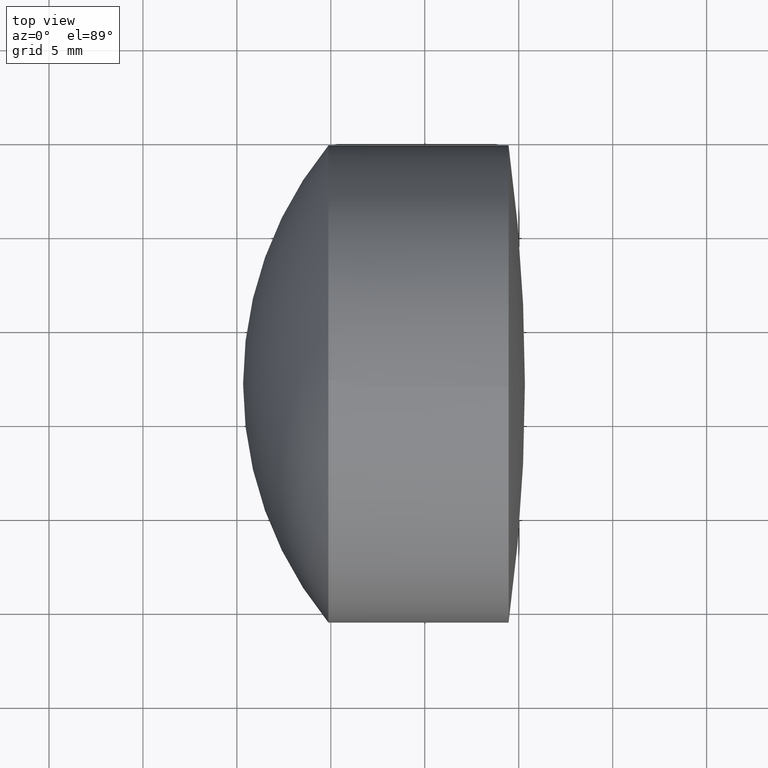
[diagram: clean part render]
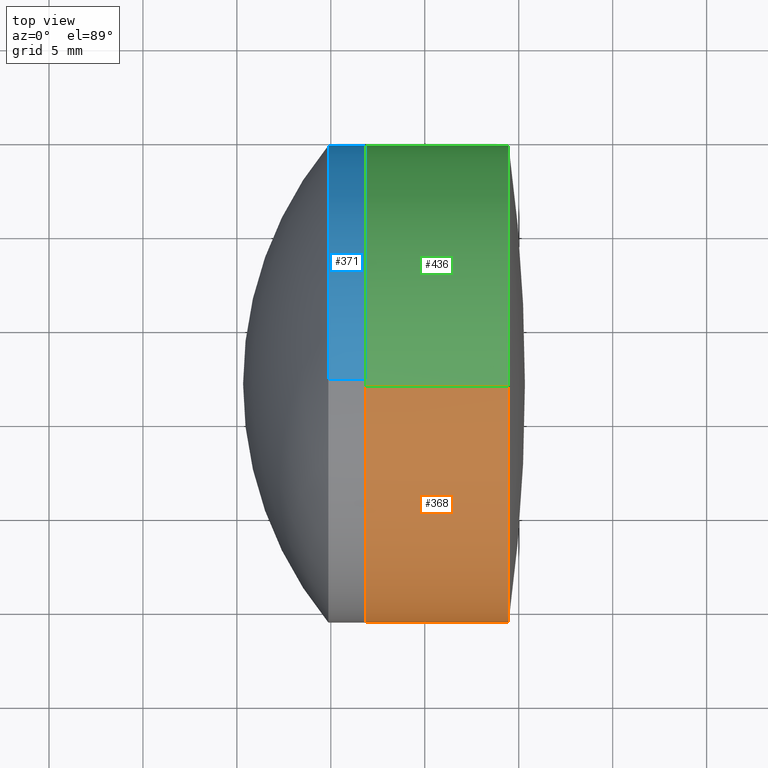
[diagram: same view with three faces highlighted in distinct colors, each labeled with its STEP entity id]
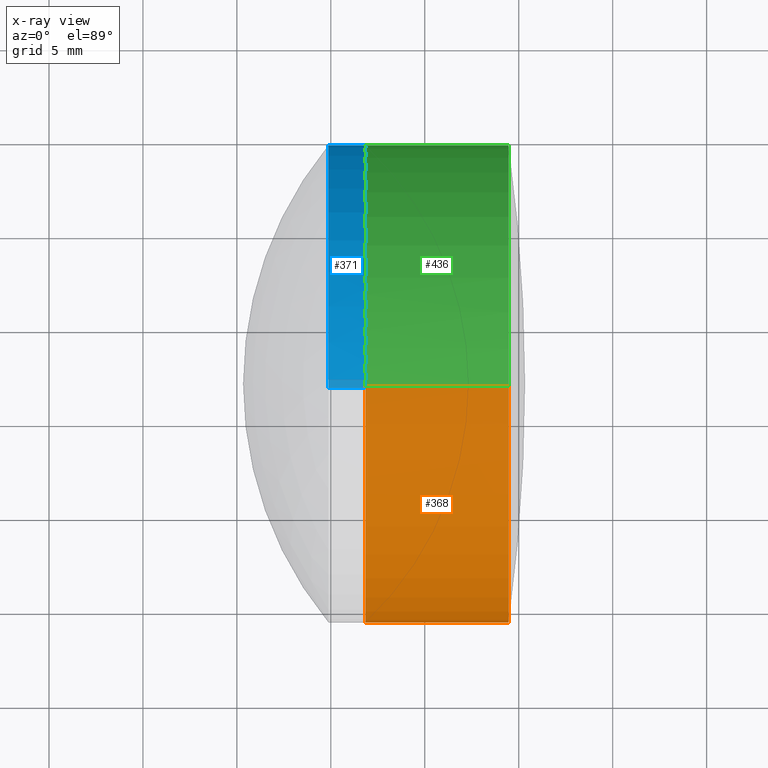
[diagram: x-ray of the same camera — body ghosted, the three highlighted faces saturated]
A machine part, top view with three faces highlighted in distinct colors.
The next image is the same camera in x-ray (body ghosted, the three faces saturated) — at least one of them is partly hidden behind the body in this view.
Their STEP definitions:

[orange] entity #368 — the highlighted cylindrical surface (partial cylindrical patch) has radius 12.7 mm, axis along (-1, -0, -0).
#5 = ORIENTED_EDGE ( 'NONE', *, *, #343, .T. ) ;
#11 = LINE ( 'NONE', #112, #242 ) ;
#33 = DIRECTION ( 'NONE',  ( 0.000000000000000000, -0.02683621914088238705, 0.9996398438148724752 ) ) ;
#35 = CARTESIAN_POINT ( 'NONE',  ( -25.54043365315157033, 32.03284803661707514, 9.296114308592563594E-16 ) ) ;
#50 = VERTEX_POINT ( 'NONE', #435 ) ;
#82 = CARTESIAN_POINT ( 'NONE',  ( -27.66995810697359204, 32.03284803661707514, 8.187873489779038115E-16 ) ) ;
#92 = CARTESIAN_POINT ( 'NONE',  ( -33.15740189501624968, 19.33742202016819434, -0.3408199830892049143 ) ) ;
#106 = ORIENTED_EDGE ( 'NONE', *, *, #157, .F. ) ;
#107 = DIRECTION ( 'NONE',  ( -1.000000000000000000, -3.326383087162362862E-17, -5.204170427930421283E-17 ) ) ;
#109 = DIRECTION ( 'NONE',  ( -1.000000000000000000, -3.326383087162362862E-17, -5.204170427930421283E-17 ) ) ;
#112 = CARTESIAN_POINT ( 'NONE',  ( -27.66995810697359204, 31.69202805352786712, 12.69542601644888080 ) ) ;
#119 = CARTESIAN_POINT ( 'NONE',  ( -25.54043365315157033, 32.37366801970627961, -12.69542601644887370 ) ) ;
#122 = CARTESIAN_POINT ( 'NONE',  ( -33.15740189501624968, 32.03284803661707514, 5.332114221112828537E-16 ) ) ;
#133 = EDGE_CURVE ( 'NONE', #338, #50, #367, .T. ) ;
#143 = CIRCLE ( 'NONE', #213, 12.70000000000000284 ) ;
#146 = ORIENTED_EDGE ( 'NONE', *, *, #133, .T. ) ;
#157 = EDGE_CURVE ( 'NONE', #301, #416, #247, .T. ) ;
#163 = VERTEX_POINT ( 'NONE', #339 ) ;
#191 = ORIENTED_EDGE ( 'NONE', *, *, #277, .F. ) ;
#204 = DIRECTION ( 'NONE',  ( -1.000000000000000000, -3.326383087162362862E-17, -5.204170427930421283E-17 ) ) ;
#207 = CARTESIAN_POINT ( 'NONE',  ( -25.54043365315156677, 19.33742202016823342, -0.3408199830892033044 ) ) ;
#213 = AXIS2_PLACEMENT_3D ( 'NONE', #122, #387, #286 ) ;
#236 = AXIS2_PLACEMENT_3D ( 'NONE', #379, #282, #311 ) ;
#239 = CARTESIAN_POINT ( 'NONE',  ( -27.66995810697359204, 32.37366801970627961, -12.69542601644888080 ) ) ;
#242 = VECTOR ( 'NONE', #107, 1000.000000000000000 ) ;
#247 = CIRCLE ( 'NONE', #428, 12.70000000000000284 ) ;
#268 = CARTESIAN_POINT ( 'NONE',  ( -33.15740189501624968, 32.03284803661707514, 5.332114221112828537E-16 ) ) ;
#271 = ORIENTED_EDGE ( 'NONE', *, *, #423, .F. ) ;
#277 = EDGE_CURVE ( 'NONE', #431, #301, #302, .T. ) ;
#282 = DIRECTION ( 'NONE',  ( -1.000000000000000000, -3.326383087162362862E-17, -5.204170427930421283E-17 ) ) ;
#286 = DIRECTION ( 'NONE',  ( 0.000000000000000000, -0.02683621914088238705, 0.9996398438148724752 ) ) ;
#289 = EDGE_LOOP ( 'NONE', ( #191, #5, #146, #391, #271, #106 ) ) ;
#301 = VERTEX_POINT ( 'NONE', #319 ) ;
#302 = LINE ( 'NONE', #239, #337 ) ;
#304 = DIRECTION ( 'NONE',  ( 0.000000000000000000, -0.02683621914088239746, 0.9996398438148724752 ) ) ;
#309 = DIRECTION ( 'NONE',  ( -1.000000000000000000, -3.326383087162362862E-17, -5.204170427930421283E-17 ) ) ;
#311 = DIRECTION ( 'NONE',  ( 0.000000000000000000, -0.02683621914088239746, 0.9996398438148724752 ) ) ;
#314 = AXIS2_PLACEMENT_3D ( 'NONE', #82, #109, #345 ) ;
#319 = CARTESIAN_POINT ( 'NONE',  ( -33.15740189501624968, 32.37366801970627961, -12.69542601644887903 ) ) ;
#327 = EDGE_CURVE ( 'NONE', #50, #163, #11, .T. ) ;
#337 = VECTOR ( 'NONE', #372, 1000.000000000000000 ) ;
#338 = VERTEX_POINT ( 'NONE', #207 ) ;
#339 = CARTESIAN_POINT ( 'NONE',  ( -33.15740189501624968, 31.69202805352786712, 12.69542601644887903 ) ) ;
#343 = EDGE_CURVE ( 'NONE', #431, #338, #429, .T. ) ;
#345 = DIRECTION ( 'NONE',  ( 0.000000000000000000, -0.02683621914088239399, 0.9996398438148724752 ) ) ;
#347 = FACE_OUTER_BOUND ( 'NONE', #289, .T. ) ;
#367 = CIRCLE ( 'NONE', #395, 12.69999999999999929 ) ;
#368 = ADVANCED_FACE ( 'NONE', ( #347 ), #430, .T. ) ;
#372 = DIRECTION ( 'NONE',  ( -1.000000000000000000, -3.326383087162362862E-17, -5.204170427930421283E-17 ) ) ;
#379 = CARTESIAN_POINT ( 'NONE',  ( -25.54043365315157033, 32.03284803661707514, 9.296114308592563594E-16 ) ) ;
#387 = DIRECTION ( 'NONE',  ( -1.000000000000000000, -3.326383087162362862E-17, -5.204170427930421283E-17 ) ) ;
#391 = ORIENTED_EDGE ( 'NONE', *, *, #327, .T. ) ;
#395 = AXIS2_PLACEMENT_3D ( 'NONE', #35, #309, #304 ) ;
#416 = VERTEX_POINT ( 'NONE', #92 ) ;
#423 = EDGE_CURVE ( 'NONE', #416, #163, #143, .T. ) ;
#428 = AXIS2_PLACEMENT_3D ( 'NONE', #268, #204, #33 ) ;
#429 = CIRCLE ( 'NONE', #236, 12.69999999999999929 ) ;
#430 = CYLINDRICAL_SURFACE ( 'NONE', #314, 12.70000000000000107 ) ;
#431 = VERTEX_POINT ( 'NONE', #119 ) ;
#435 = CARTESIAN_POINT ( 'NONE',  ( -25.54043365315157033, 31.69202805352786712, 12.69542601644887725 ) ) ;

[blue] entity #371 — the highlighted cylindrical surface (partial cylindrical patch) has radius 12.7 mm, axis along (-1, -0, -0).
#14 = DIRECTION ( 'NONE',  ( -1.000000000000000000, -0.000000000000000000, -0.000000000000000000 ) ) ;
#19 = DIRECTION ( 'NONE',  ( -1.000000000000000000, -0.000000000000000000, -0.000000000000000000 ) ) ;
#30 = DIRECTION ( 'NONE',  ( -1.000000000000000000, -0.000000000000000000, -0.000000000000000000 ) ) ;
#32 = CARTESIAN_POINT ( 'NONE',  ( -33.15740189501624968, 32.03284803661706093, -12.69999999999999929 ) ) ;
#37 = EDGE_CURVE ( 'NONE', #83, #397, #151, .T. ) ;
#45 = DIRECTION ( 'NONE',  ( -1.000000000000000000, -0.000000000000000000, -0.000000000000000000 ) ) ;
#62 = EDGE_CURVE ( 'NONE', #283, #83, #211, .T. ) ;
#67 = EDGE_LOOP ( 'NONE', ( #269, #180, #255, #425, #374, #341 ) ) ;
#83 = VERTEX_POINT ( 'NONE', #386 ) ;
#84 = CARTESIAN_POINT ( 'NONE',  ( -39.66995810697360270, 32.03284803661706093, 12.69999999999999929 ) ) ;
#104 = EDGE_CURVE ( 'NONE', #237, #397, #214, .T. ) ;
#110 = EDGE_CURVE ( 'NONE', #131, #283, #251, .T. ) ;
#114 = DIRECTION ( 'NONE',  ( 0.000000000000000000, 0.000000000000000000, 1.000000000000000000 ) ) ;
#116 = FACE_OUTER_BOUND ( 'NONE', #67, .T. ) ;
#124 = CARTESIAN_POINT ( 'NONE',  ( -39.66995810697360270, 32.03284803661706093, -12.69999999999999929 ) ) ;
#131 = VERTEX_POINT ( 'NONE', #166 ) ;
#136 = DIRECTION ( 'NONE',  ( 0.000000000000000000, 0.000000000000000000, 1.000000000000000000 ) ) ;
#147 = CARTESIAN_POINT ( 'NONE',  ( -35.12901553471916571, 32.03284803661706093, 12.69999999999999929 ) ) ;
#151 = CIRCLE ( 'NONE', #193, 12.69999999999999929 ) ;
#158 = VECTOR ( 'NONE', #426, 1000.000000000000000 ) ;
#164 = DIRECTION ( 'NONE',  ( 0.000000000000000000, 0.000000000000000000, 1.000000000000000000 ) ) ;
#166 = CARTESIAN_POINT ( 'NONE',  ( -33.15740189501624968, 32.03284803661706093, 12.69999999999999929 ) ) ;
#172 = DIRECTION ( 'NONE',  ( 0.000000000000000000, 0.000000000000000000, 1.000000000000000000 ) ) ;
#174 = CYLINDRICAL_SURFACE ( 'NONE', #232, 12.69999999999999929 ) ;
#177 = EDGE_CURVE ( 'NONE', #411, #237, #376, .T. ) ;
#180 = ORIENTED_EDGE ( 'NONE', *, *, #104, .T. ) ;
#185 = AXIS2_PLACEMENT_3D ( 'NONE', #307, #275, #136 ) ;
#187 = CARTESIAN_POINT ( 'NONE',  ( -33.15740189501624968, 44.73284803661706377, 0.000000000000000000 ) ) ;
#193 = AXIS2_PLACEMENT_3D ( 'NONE', #285, #353, #294 ) ;
#197 = EDGE_CURVE ( 'NONE', #131, #411, #298, .T. ) ;
#209 = CARTESIAN_POINT ( 'NONE',  ( -35.12901553471916571, 32.03284803661706093, -12.69999999999999929 ) ) ;
#211 = CIRCLE ( 'NONE', #440, 12.69999999999999929 ) ;
#214 = LINE ( 'NONE', #124, #158 ) ;
#216 = CARTESIAN_POINT ( 'NONE',  ( -39.66995810697360270, 32.03284803661706093, 0.000000000000000000 ) ) ;
#232 = AXIS2_PLACEMENT_3D ( 'NONE', #216, #45, #172 ) ;
#237 = VERTEX_POINT ( 'NONE', #32 ) ;
#251 = LINE ( 'NONE', #84, #401 ) ;
#255 = ORIENTED_EDGE ( 'NONE', *, *, #37, .F. ) ;
#269 = ORIENTED_EDGE ( 'NONE', *, *, #177, .T. ) ;
#275 = DIRECTION ( 'NONE',  ( -1.000000000000000000, -0.000000000000000000, -0.000000000000000000 ) ) ;
#283 = VERTEX_POINT ( 'NONE', #147 ) ;
#285 = CARTESIAN_POINT ( 'NONE',  ( -35.12901553471916571, 32.03284803661706093, 0.000000000000000000 ) ) ;
#294 = DIRECTION ( 'NONE',  ( 0.000000000000000000, 0.000000000000000000, 1.000000000000000000 ) ) ;
#298 = CIRCLE ( 'NONE', #419, 12.69999999999999929 ) ;
#307 = CARTESIAN_POINT ( 'NONE',  ( -33.15740189501624968, 32.03284803661706093, 0.000000000000000000 ) ) ;
#318 = CARTESIAN_POINT ( 'NONE',  ( -35.12901553471916571, 32.03284803661706093, 0.000000000000000000 ) ) ;
#341 = ORIENTED_EDGE ( 'NONE', *, *, #197, .T. ) ;
#353 = DIRECTION ( 'NONE',  ( -1.000000000000000000, -0.000000000000000000, -0.000000000000000000 ) ) ;
#371 = ADVANCED_FACE ( 'NONE', ( #116 ), #174, .T. ) ;
#374 = ORIENTED_EDGE ( 'NONE', *, *, #110, .F. ) ;
#375 = CARTESIAN_POINT ( 'NONE',  ( -33.15740189501624968, 32.03284803661706093, 0.000000000000000000 ) ) ;
#376 = CIRCLE ( 'NONE', #185, 12.69999999999999929 ) ;
#386 = CARTESIAN_POINT ( 'NONE',  ( -35.12901553471916571, 44.73284803661706377, 0.000000000000000000 ) ) ;
#397 = VERTEX_POINT ( 'NONE', #209 ) ;
#401 = VECTOR ( 'NONE', #19, 1000.000000000000000 ) ;
#411 = VERTEX_POINT ( 'NONE', #187 ) ;
#419 = AXIS2_PLACEMENT_3D ( 'NONE', #375, #30, #164 ) ;
#425 = ORIENTED_EDGE ( 'NONE', *, *, #62, .F. ) ;
#426 = DIRECTION ( 'NONE',  ( -1.000000000000000000, -0.000000000000000000, -0.000000000000000000 ) ) ;
#440 = AXIS2_PLACEMENT_3D ( 'NONE', #318, #14, #114 ) ;

[green] entity #436 — the highlighted cylindrical surface (partial cylindrical patch) has radius 12.7 mm, axis along (-1, -0, -0).
#1 = VERTEX_POINT ( 'NONE', #321 ) ;
#4 = DIRECTION ( 'NONE',  ( 0.000000000000000000, -0.02683621914088238705, 0.9996398438148724752 ) ) ;
#10 = EDGE_CURVE ( 'NONE', #320, #301, #98, .T. ) ;
#11 = LINE ( 'NONE', #112, #242 ) ;
#21 = CARTESIAN_POINT ( 'NONE',  ( -33.15740189501624968, 32.03284803661707514, 5.332114221112828537E-16 ) ) ;
#23 = FACE_OUTER_BOUND ( 'NONE', #154, .T. ) ;
#25 = AXIS2_PLACEMENT_3D ( 'NONE', #412, #105, #196 ) ;
#47 = DIRECTION ( 'NONE',  ( 0.000000000000000000, -0.02683621914088238705, 0.9996398438148724752 ) ) ;
#48 = CARTESIAN_POINT ( 'NONE',  ( -27.66995810697359204, 32.03284803661707514, 8.187873489779038115E-16 ) ) ;
#50 = VERTEX_POINT ( 'NONE', #435 ) ;
#51 = ORIENTED_EDGE ( 'NONE', *, *, #225, .T. ) ;
#69 = CARTESIAN_POINT ( 'NONE',  ( -33.15740189501624968, 32.03284803661707514, 5.332114221112828537E-16 ) ) ;
#98 = CIRCLE ( 'NONE', #336, 12.70000000000000284 ) ;
#102 = CIRCLE ( 'NONE', #442, 12.70000000000000284 ) ;
#105 = DIRECTION ( 'NONE',  ( -1.000000000000000000, -3.326383087162362862E-17, -5.204170427930421283E-17 ) ) ;
#107 = DIRECTION ( 'NONE',  ( -1.000000000000000000, -3.326383087162362862E-17, -5.204170427930421283E-17 ) ) ;
#112 = CARTESIAN_POINT ( 'NONE',  ( -27.66995810697359204, 31.69202805352786712, 12.69542601644888080 ) ) ;
#113 = ORIENTED_EDGE ( 'NONE', *, *, #10, .F. ) ;
#119 = CARTESIAN_POINT ( 'NONE',  ( -25.54043365315157033, 32.37366801970627961, -12.69542601644887370 ) ) ;
#142 = AXIS2_PLACEMENT_3D ( 'NONE', #238, #365, #444 ) ;
#154 = EDGE_LOOP ( 'NONE', ( #51, #188, #113, #418, #233, #390 ) ) ;
#163 = VERTEX_POINT ( 'NONE', #339 ) ;
#168 = DIRECTION ( 'NONE',  ( -1.000000000000000000, -3.326383087162362862E-17, -5.204170427930421283E-17 ) ) ;
#188 = ORIENTED_EDGE ( 'NONE', *, *, #277, .T. ) ;
#196 = DIRECTION ( 'NONE',  ( 0.000000000000000000, -0.02683621914088239746, 0.9996398438148724752 ) ) ;
#225 = EDGE_CURVE ( 'NONE', #1, #431, #355, .T. ) ;
#233 = ORIENTED_EDGE ( 'NONE', *, *, #327, .F. ) ;
#238 = CARTESIAN_POINT ( 'NONE',  ( -25.54043365315157033, 32.03284803661707514, 9.296114308592563594E-16 ) ) ;
#239 = CARTESIAN_POINT ( 'NONE',  ( -27.66995810697359204, 32.37366801970627961, -12.69542601644888080 ) ) ;
#242 = VECTOR ( 'NONE', #107, 1000.000000000000000 ) ;
#252 = CYLINDRICAL_SURFACE ( 'NONE', #377, 12.70000000000000107 ) ;
#257 = DIRECTION ( 'NONE',  ( -1.000000000000000000, -3.326383087162362862E-17, -5.204170427930421283E-17 ) ) ;
#267 = EDGE_CURVE ( 'NONE', #50, #1, #356, .T. ) ;
#277 = EDGE_CURVE ( 'NONE', #431, #301, #302, .T. ) ;
#279 = CARTESIAN_POINT ( 'NONE',  ( -33.15740189501624968, 44.72827405306595239, 0.3408199830892042481 ) ) ;
#281 = EDGE_CURVE ( 'NONE', #163, #320, #102, .T. ) ;
#293 = DIRECTION ( 'NONE',  ( 0.000000000000000000, -0.02683621914088239399, 0.9996398438148724752 ) ) ;
#301 = VERTEX_POINT ( 'NONE', #319 ) ;
#302 = LINE ( 'NONE', #239, #337 ) ;
#319 = CARTESIAN_POINT ( 'NONE',  ( -33.15740189501624968, 32.37366801970627961, -12.69542601644887903 ) ) ;
#320 = VERTEX_POINT ( 'NONE', #279 ) ;
#321 = CARTESIAN_POINT ( 'NONE',  ( -25.54043365315156677, 44.72827405306590975, 0.3408199830892035265 ) ) ;
#324 = DIRECTION ( 'NONE',  ( -1.000000000000000000, -3.326383087162362862E-17, -5.204170427930421283E-17 ) ) ;
#327 = EDGE_CURVE ( 'NONE', #50, #163, #11, .T. ) ;
#336 = AXIS2_PLACEMENT_3D ( 'NONE', #21, #324, #47 ) ;
#337 = VECTOR ( 'NONE', #372, 1000.000000000000000 ) ;
#339 = CARTESIAN_POINT ( 'NONE',  ( -33.15740189501624968, 31.69202805352786712, 12.69542601644887903 ) ) ;
#355 = CIRCLE ( 'NONE', #142, 12.69999999999999929 ) ;
#356 = CIRCLE ( 'NONE', #25, 12.69999999999999929 ) ;
#365 = DIRECTION ( 'NONE',  ( -1.000000000000000000, -3.326383087162362862E-17, -5.204170427930421283E-17 ) ) ;
#372 = DIRECTION ( 'NONE',  ( -1.000000000000000000, -3.326383087162362862E-17, -5.204170427930421283E-17 ) ) ;
#377 = AXIS2_PLACEMENT_3D ( 'NONE', #48, #257, #293 ) ;
#390 = ORIENTED_EDGE ( 'NONE', *, *, #267, .T. ) ;
#412 = CARTESIAN_POINT ( 'NONE',  ( -25.54043365315157033, 32.03284803661707514, 9.296114308592563594E-16 ) ) ;
#418 = ORIENTED_EDGE ( 'NONE', *, *, #281, .F. ) ;
#431 = VERTEX_POINT ( 'NONE', #119 ) ;
#435 = CARTESIAN_POINT ( 'NONE',  ( -25.54043365315157033, 31.69202805352786712, 12.69542601644887725 ) ) ;
#436 = ADVANCED_FACE ( 'NONE', ( #23 ), #252, .T. ) ;
#442 = AXIS2_PLACEMENT_3D ( 'NONE', #69, #168, #4 ) ;
#444 = DIRECTION ( 'NONE',  ( 0.000000000000000000, -0.02683621914088239746, 0.9996398438148724752 ) ) ;